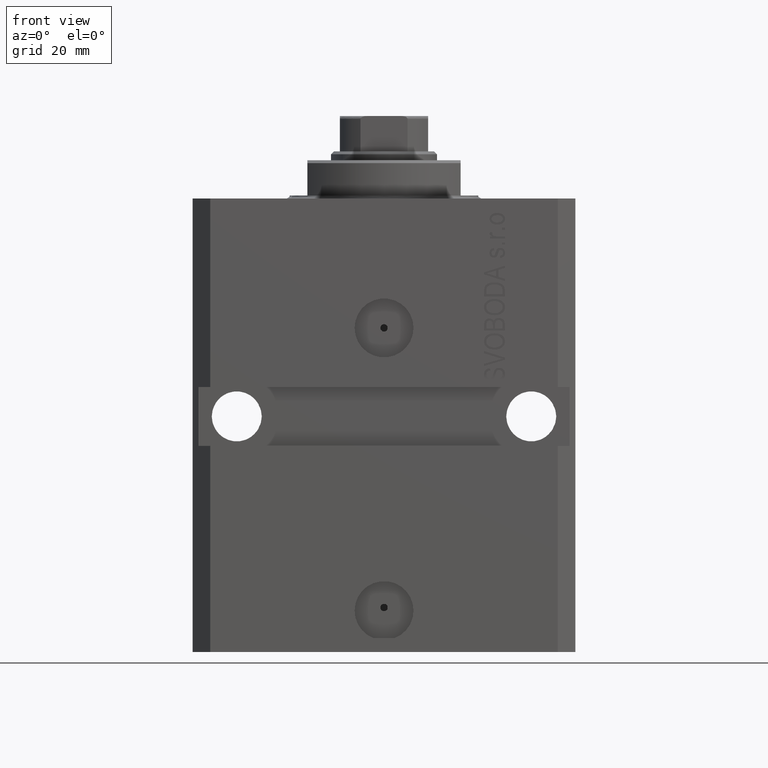
[diagram: clean part render]
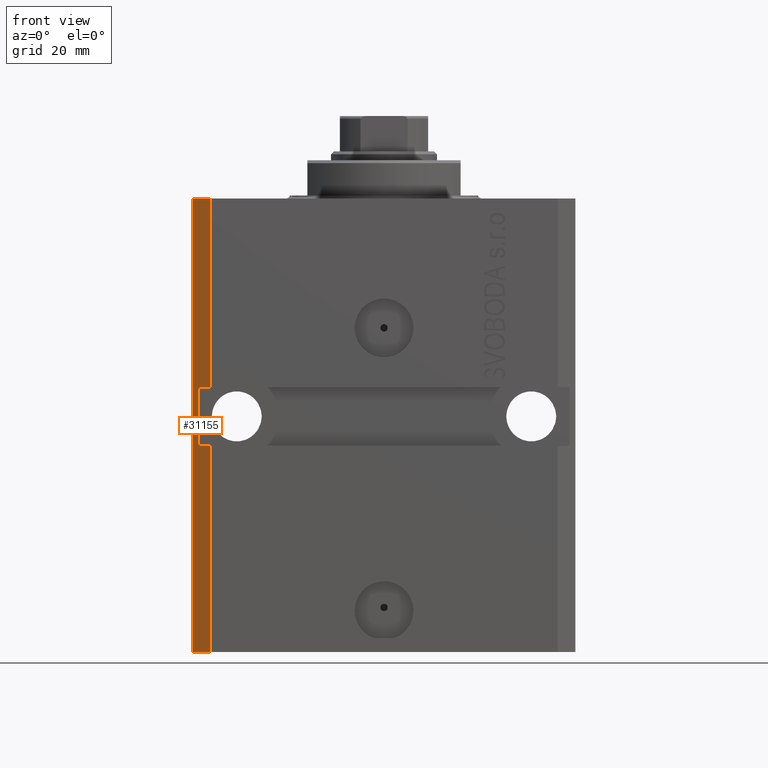
[diagram: same view with one face highlighted and labeled with its STEP entity id]
A machine part, front view. The second image highlights one B-rep face of the part: STEP entity #31155.
In plain terms, the highlighted planar face has unit normal (-0.7071, -0.7071, 0).
Its self-contained STEP definition (entity closure, byte-faithful):
#297 = VECTOR ( 'NONE', #40213, 1000.000000000000000 ) ;
#751 = DIRECTION ( 'NONE',  ( 0.000000000000000000, 0.000000000000000000, 1.000000000000000000 ) ) ;
#1524 = ORIENTED_EDGE ( 'NONE', *, *, #33154, .F. ) ;
#1731 = CARTESIAN_POINT ( 'NONE',  ( -29.49999999999650413, -22.49999999999949907, -77.00000000000000000 ) ) ;
#1747 = CARTESIAN_POINT ( 'NONE',  ( -29.49999999999650413, -22.49999999999949907, -77.00000000000000000 ) ) ;
#2863 = CARTESIAN_POINT ( 'NONE',  ( -32.49999999999650413, -19.49999999999949907, 0.000000000000000000 ) ) ;
#2907 = EDGE_CURVE ( 'NONE', #6190, #21763, #45238, .T. ) ;
#3579 = ORIENTED_EDGE ( 'NONE', *, *, #12402, .T. ) ;
#4883 = VERTEX_POINT ( 'NONE', #13182 ) ;
#4932 = VERTEX_POINT ( 'NONE', #19632 ) ;
#6190 = VERTEX_POINT ( 'NONE', #2863 ) ;
#6303 = FACE_OUTER_BOUND ( 'NONE', #15714, .T. ) ;
#6539 = VECTOR ( 'NONE', #16811, 1000.000000000000000 ) ;
#7264 = ORIENTED_EDGE ( 'NONE', *, *, #20790, .F. ) ;
#7792 = CARTESIAN_POINT ( 'NONE',  ( -32.49999999999650413, -19.49999999999949907, 0.000000000000000000 ) ) ;
#8826 = VERTEX_POINT ( 'NONE', #32036 ) ;
#9895 = CARTESIAN_POINT ( 'NONE',  ( -29.49999999999650413, -22.49999999999949907, -77.00000000000000000 ) ) ;
#11338 = VECTOR ( 'NONE', #751, 1000.000000000000000 ) ;
#12402 = EDGE_CURVE ( 'NONE', #39124, #21763, #42578, .T. ) ;
#12895 = DIRECTION ( 'NONE',  ( -0.7071067811865474617, 0.7071067811865474617, 7.548521435980497974E-17 ) ) ;
#13182 = CARTESIAN_POINT ( 'NONE',  ( -31.49999999999650413, -20.49999999999949907, -41.99999999999999289 ) ) ;
#14717 = ORIENTED_EDGE ( 'NONE', *, *, #37373, .T. ) ;
#15714 = EDGE_LOOP ( 'NONE', ( #7264, #19715, #1524, #3579, #32343, #17876, #14717, #20411 ) ) ;
#16580 = CARTESIAN_POINT ( 'NONE',  ( -29.49999999999650413, -22.49999999999949907, 0.000000000000000000 ) ) ;
#16811 = DIRECTION ( 'NONE',  ( 0.000000000000000000, 0.000000000000000000, 1.000000000000000000 ) ) ;
#17876 = ORIENTED_EDGE ( 'NONE', *, *, #23354, .F. ) ;
#19632 = CARTESIAN_POINT ( 'NONE',  ( -31.49999999999650413, -20.49999999999950262, -32.00000000000000000 ) ) ;
#19641 = VECTOR ( 'NONE', #32385, 1000.000000000000114 ) ;
#19715 = ORIENTED_EDGE ( 'NONE', *, *, #26510, .T. ) ;
#20313 = VECTOR ( 'NONE', #12895, 1000.000000000000114 ) ;
#20411 = ORIENTED_EDGE ( 'NONE', *, *, #22242, .T. ) ;
#20790 = EDGE_CURVE ( 'NONE', #4883, #8826, #43574, .T. ) ;
#20856 = DIRECTION ( 'NONE',  ( -0.7071067811865475727, -0.7071067811865475727, 0.000000000000000000 ) ) ;
#21763 = VERTEX_POINT ( 'NONE', #16580 ) ;
#21814 = CARTESIAN_POINT ( 'NONE',  ( -29.49999999999650058, -22.49999999999949907, -32.00000000000000000 ) ) ;
#22242 = EDGE_CURVE ( 'NONE', #42599, #8826, #30396, .T. ) ;
#23354 = EDGE_CURVE ( 'NONE', #29572, #6190, #32518, .T. ) ;
#24449 = DIRECTION ( 'NONE',  ( 0.7071067811865474617, -0.7071067811865474617, 0.000000000000000000 ) ) ;
#24852 = AXIS2_PLACEMENT_3D ( 'NONE', #42101, #20856, #24449 ) ;
#26510 = EDGE_CURVE ( 'NONE', #4883, #4932, #47135, .T. ) ;
#28795 = CARTESIAN_POINT ( 'NONE',  ( -31.49999999999650413, -20.49999999999950262, -77.00000000000000000 ) ) ;
#29572 = VERTEX_POINT ( 'NONE', #46256 ) ;
#30396 = LINE ( 'NONE', #1747, #47096 ) ;
#30864 = DIRECTION ( 'NONE',  ( 0.000000000000000000, 0.000000000000000000, 1.000000000000000000 ) ) ;
#30920 = PLANE ( 'NONE',  #24852 ) ;
#31155 = ADVANCED_FACE ( 'NONE', ( #6303 ), #30920, .T. ) ;
#31431 = VECTOR ( 'NONE', #33336, 1000.000000000000114 ) ;
#32036 = CARTESIAN_POINT ( 'NONE',  ( -29.49999999999650413, -22.49999999999949907, -41.99999999999999289 ) ) ;
#32343 = ORIENTED_EDGE ( 'NONE', *, *, #2907, .F. ) ;
#32385 = DIRECTION ( 'NONE',  ( 0.7071067811865474617, -0.7071067811865474617, 7.548521435980497974E-17 ) ) ;
#32518 = LINE ( 'NONE', #47043, #11338 ) ;
#33154 = EDGE_CURVE ( 'NONE', #39124, #4932, #44874, .T. ) ;
#33336 = DIRECTION ( 'NONE',  ( 0.7071067811865474617, -0.7071067811865474617, 0.000000000000000000 ) ) ;
#34150 = CARTESIAN_POINT ( 'NONE',  ( -32.49999999999650413, -19.49999999999950262, -32.00000000000000000 ) ) ;
#36427 = CARTESIAN_POINT ( 'NONE',  ( -32.49999999999650413, -19.49999999999949551, -41.99999999999999289 ) ) ;
#37373 = EDGE_CURVE ( 'NONE', #29572, #42599, #41293, .T. ) ;
#39124 = VERTEX_POINT ( 'NONE', #21814 ) ;
#40213 = DIRECTION ( 'NONE',  ( 0.000000000000000000, 0.000000000000000000, 1.000000000000000000 ) ) ;
#41293 = LINE ( 'NONE', #44388, #43978 ) ;
#42101 = CARTESIAN_POINT ( 'NONE',  ( -32.49999999999650413, -19.49999999999949907, -77.00000000000000000 ) ) ;
#42578 = LINE ( 'NONE', #9895, #6539 ) ;
#42599 = VERTEX_POINT ( 'NONE', #1731 ) ;
#43574 = LINE ( 'NONE', #36427, #19641 ) ;
#43978 = VECTOR ( 'NONE', #44624, 1000.000000000000114 ) ;
#44388 = CARTESIAN_POINT ( 'NONE',  ( -32.49999999999650413, -19.49999999999949907, -77.00000000000000000 ) ) ;
#44624 = DIRECTION ( 'NONE',  ( 0.7071067811865474617, -0.7071067811865474617, 0.000000000000000000 ) ) ;
#44874 = LINE ( 'NONE', #34150, #20313 ) ;
#45238 = LINE ( 'NONE', #7792, #31431 ) ;
#46256 = CARTESIAN_POINT ( 'NONE',  ( -32.49999999999650413, -19.49999999999949907, -77.00000000000000000 ) ) ;
#47043 = CARTESIAN_POINT ( 'NONE',  ( -32.49999999999650413, -19.49999999999949907, -77.00000000000000000 ) ) ;
#47096 = VECTOR ( 'NONE', #30864, 1000.000000000000000 ) ;
#47135 = LINE ( 'NONE', #28795, #297 ) ;